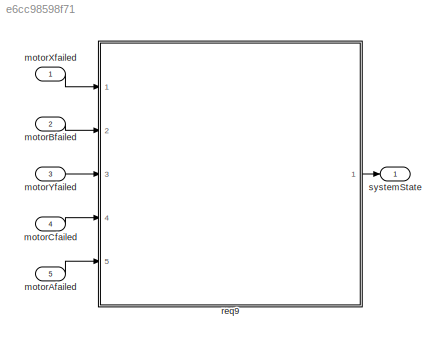
MODEL slx_e6cc98598f71
KIND model
CONFIG AbsTol = auto
CONFIG EnableMultiTasking = off
CONFIG FixedStep = auto
CONFIG MaxStep = auto
CONFIG MinStep = auto
CONFIG RelTol = 1e-3
CONFIG SampleTimeConstraint = Unconstrained
CONFIG Solver = FixedStepAuto
CONFIG SolverName = FixedStepAuto
CONFIG StartTime = 0.0
CONFIG StopTime = 100
BLOCK [Inport] motorAfailed
  IconDisplay = Port number
  Port = 5
BLOCK [Inport] motorBfailed
  IconDisplay = Port number
  Port = 2
BLOCK [Inport] motorCfailed
  IconDisplay = Port number
  Port = 4
BLOCK [Inport] motorXfailed
  IconDisplay = Port number
BLOCK [Inport] motorYfailed
  IconDisplay = Port number
  Port = 3
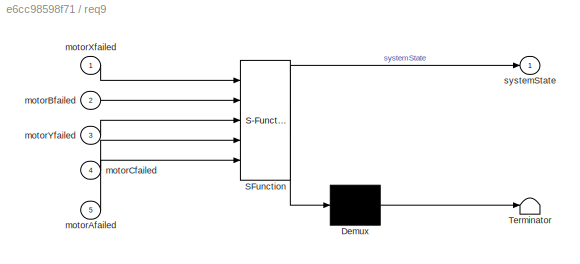
BLOCK [SubSystem] req9
  BlockKeywords = __PRM__SERIALIZED__DATA__:Stateflow Chart,Stateflow Diagram
  ErrorFcn = Stateflow.Translate.translate
  PermitHierarchicalResolution = ExplicitOnly
  Ports = [5, 1]
  RequestExecContextInheritance = off
  SFBlockType = Chart
  TreatAsAtomicUnit = on
BLOCK [Demux] req9/ Demux 
  Outputs = 1
  Ports = [1, 1]
BLOCK [S-Function] req9/ SFunction 
  EnableBusSupport = on
  FunctionName = sf_sfun
  PortCounts = [5 2]
  Ports = [5, 2]
  SFcnIsStateOwnerBlock = off
  SFunctionDeploymentMode = off
  Tag = Stateflow S-Function req9 1
BLOCK [Terminator] req9/ Terminator 
BLOCK [Inport] req9/motorAfailed
  IconDisplay = Port number
  Port = 5
BLOCK [Inport] req9/motorBfailed
  IconDisplay = Port number
  Port = 2
BLOCK [Inport] req9/motorCfailed
  IconDisplay = Port number
  Port = 4
BLOCK [Inport] req9/motorXfailed
  IconDisplay = Port number
BLOCK [Inport] req9/motorYfailed
  IconDisplay = Port number
  Port = 3
BLOCK [Outport] req9/systemState
  IconDisplay = Port number
BLOCK [Outport] systemState
  IconDisplay = Port number
LINE motorAfailed:1 -> req9:5
LINE motorBfailed:1 -> req9:2
LINE motorCfailed:1 -> req9:4
LINE motorXfailed:1 -> req9:1
LINE motorYfailed:1 -> req9:3
LINE req9:1 -> systemState:1
CHART req9 states=4 transitions=4
  STATE_LABEL 'allGood\nsystemState=0;'
  STATE_LABEL 'orangeState\nsystemState=1;'
  STATE_LABEL 'amberState\nsystemState=2;'
  STATE_LABEL 'redState\nsystemState=3;'
